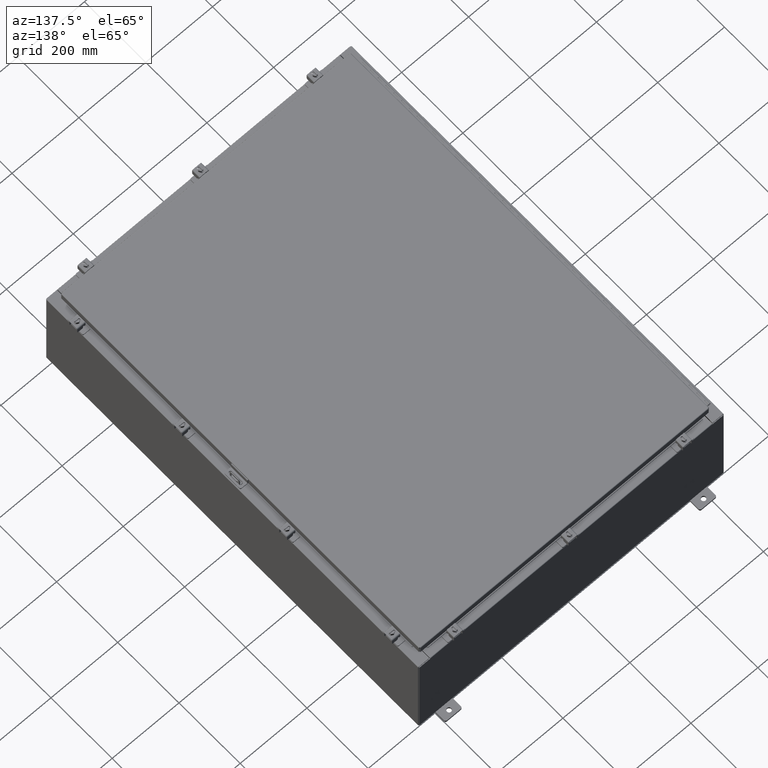
[diagram: clean part render]
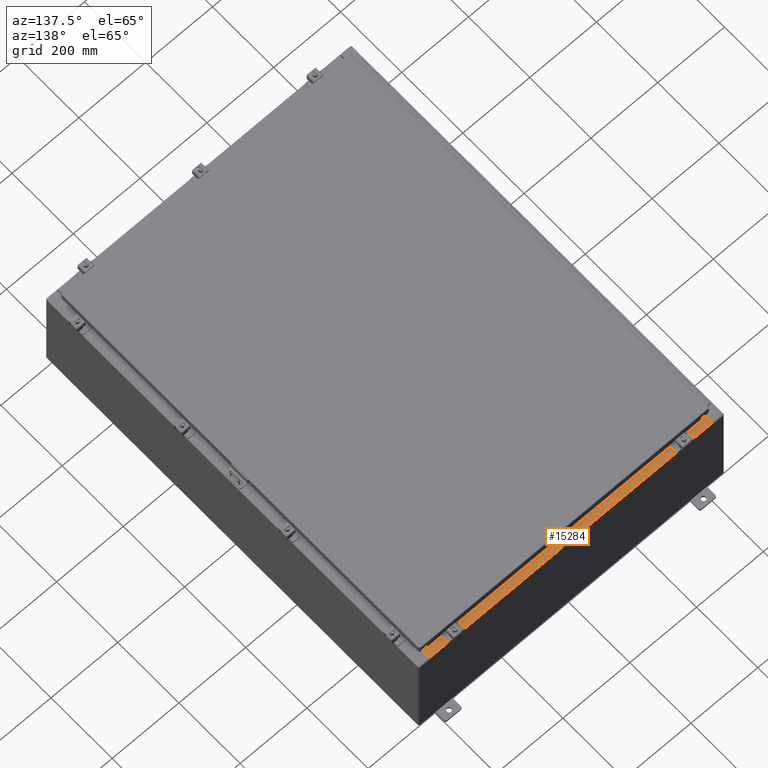
[diagram: same view with one face highlighted and labeled with its STEP entity id]
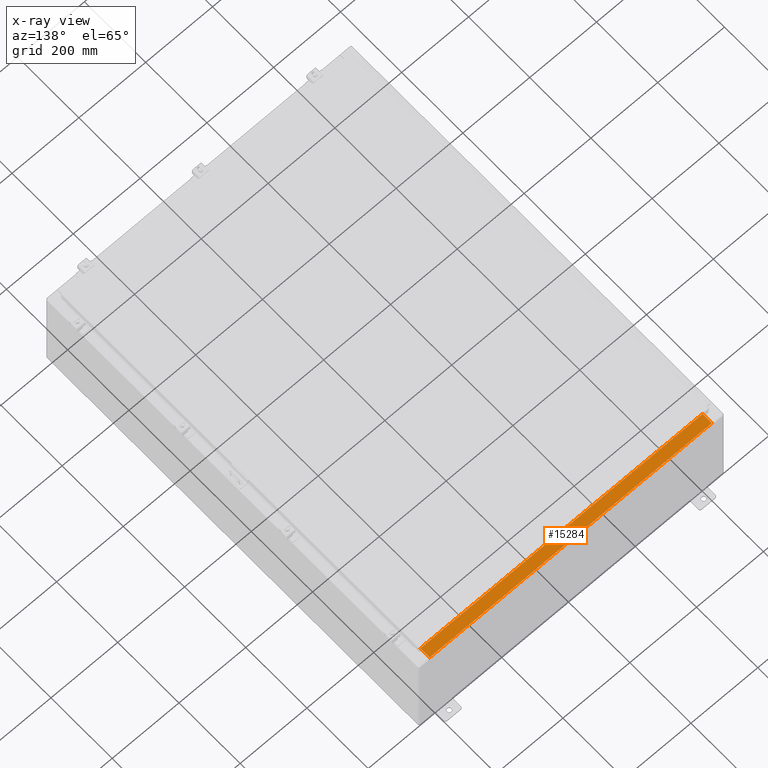
[diagram: x-ray of the same camera — body ghosted, the highlighted face saturated]
A machine part, auxiliary view. The second image highlights one B-rep face of the part: STEP entity #15284.
The next image is the same camera in x-ray: the body ghosted, the highlighted face saturated — about 0% of this face is hidden behind the body in this view.
In plain terms, the highlighted planar face has unit normal (0, 0, 1).
Its self-contained STEP definition (entity closure, byte-faithful):
#2321 = VECTOR ( 'NONE', #32606, 39.37007874015748100 ) ;
#3294 = CARTESIAN_POINT ( 'NONE',  ( -16.63719999999999600, -0.08769999999999972300, 5.999999999999999100 ) ) ;
#3364 = PLANE ( 'NONE',  #3786 ) ;
#3619 = DIRECTION ( 'NONE',  ( -1.000000000000000000, 3.284023746380717400E-017, -8.784060394284559800E-032 ) ) ;
#3786 = AXIS2_PLACEMENT_3D ( 'NONE', #32526, #7452, #36700 ) ;
#4631 = VERTEX_POINT ( 'NONE', #45829 ) ;
#7452 = DIRECTION ( 'NONE',  ( 0.0000000000000000000, 2.674785894579892700E-015, 1.000000000000000000 ) ) ;
#8760 = EDGE_CURVE ( 'NONE', #48510, #41352, #46616, .T. ) ;
#12385 = CARTESIAN_POINT ( 'NONE',  ( 16.63720000000000400, -1.300299999999999800, 6.000000000000003600 ) ) ;
#14377 = VECTOR ( 'NONE', #18281, 39.37007874015748100 ) ;
#15284 = ADVANCED_FACE ( 'NONE', ( #45203 ), #3364, .T. ) ;
#16455 = EDGE_CURVE ( 'NONE', #4631, #52579, #50259, .T. ) ;
#18251 = VECTOR ( 'NONE', #3619, 39.37007874015748100 ) ;
#18281 = DIRECTION ( 'NONE',  ( -0.0000000000000000000, 1.000000000000000000, -2.674785894579892700E-015 ) ) ;
#20280 = CARTESIAN_POINT ( 'NONE',  ( 16.63720000000000400, -1.287299999999999400, 6.000000000000003600 ) ) ;
#20596 = EDGE_CURVE ( 'NONE', #41352, #52579, #36719, .T. ) ;
#20789 = CARTESIAN_POINT ( 'NONE',  ( -16.63719999999999600, -1.287299999999998600, 6.000000000000002700 ) ) ;
#28940 = VECTOR ( 'NONE', #41728, 39.37007874015748100 ) ;
#31713 = ORIENTED_EDGE ( 'NONE', *, *, #16455, .T. ) ;
#31822 = ORIENTED_EDGE ( 'NONE', *, *, #8760, .F. ) ;
#32158 = EDGE_CURVE ( 'NONE', #4631, #48510, #53788, .T. ) ;
#32526 = CARTESIAN_POINT ( 'NONE',  ( -2.276882898771239300E-018, 1.610972251716581800E-014, 5.999999999999999100 ) ) ;
#32606 = DIRECTION ( 'NONE',  ( -1.000000000000000000, 0.0000000000000000000, 0.0000000000000000000 ) ) ;
#36700 = DIRECTION ( 'NONE',  ( 0.0000000000000000000, -1.000000000000000000, 2.674785894579892700E-015 ) ) ;
#36719 = LINE ( 'NONE', #51732, #14377 ) ;
#36998 = EDGE_LOOP ( 'NONE', ( #42637, #31822, #39874, #31713 ) ) ;
#39874 = ORIENTED_EDGE ( 'NONE', *, *, #32158, .F. ) ;
#41352 = VERTEX_POINT ( 'NONE', #20789 ) ;
#41728 = DIRECTION ( 'NONE',  ( -0.0000000000000000000, -1.000000000000000000, 3.566381192773190000E-015 ) ) ;
#42637 = ORIENTED_EDGE ( 'NONE', *, *, #20596, .F. ) ;
#45203 = FACE_OUTER_BOUND ( 'NONE', #36998, .T. ) ;
#45829 = CARTESIAN_POINT ( 'NONE',  ( 16.63720000000000400, -0.08769999999999948700, 5.999999999999999100 ) ) ;
#46616 = LINE ( 'NONE', #53183, #2321 ) ;
#48510 = VERTEX_POINT ( 'NONE', #20280 ) ;
#49490 = CARTESIAN_POINT ( 'NONE',  ( -5.156971724347648400E-018, -0.08769999999999972300, 5.999999999999999100 ) ) ;
#50259 = LINE ( 'NONE', #49490, #18251 ) ;
#51732 = CARTESIAN_POINT ( 'NONE',  ( -16.63719999999999600, -0.07469999999999973900, 5.999999999999999100 ) ) ;
#52579 = VERTEX_POINT ( 'NONE', #3294 ) ;
#53183 = CARTESIAN_POINT ( 'NONE',  ( 16.63720000000000400, -1.287299999999999400, 6.000000000000001800 ) ) ;
#53788 = LINE ( 'NONE', #12385, #28940 ) ;